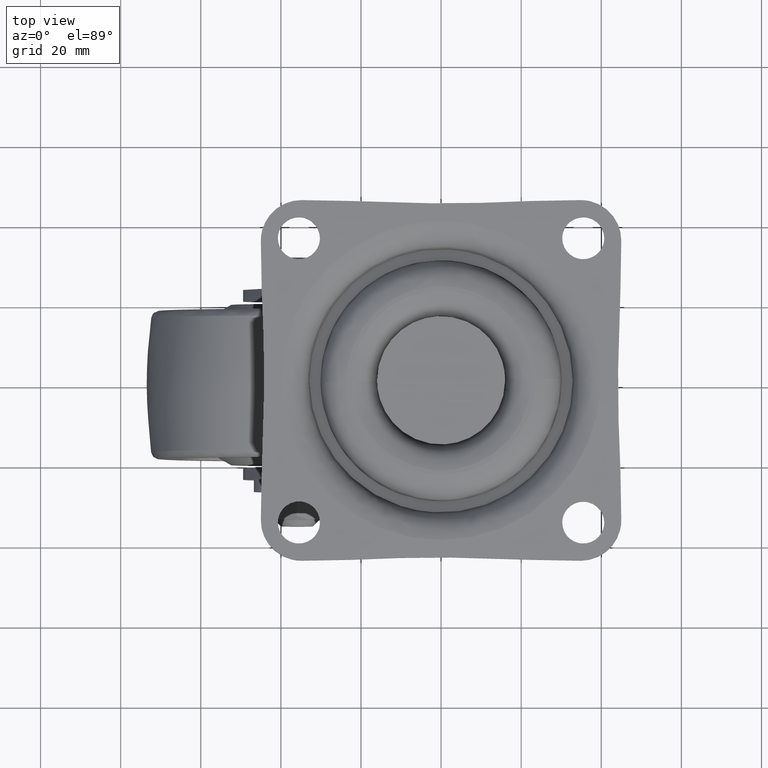
[diagram: clean part render]
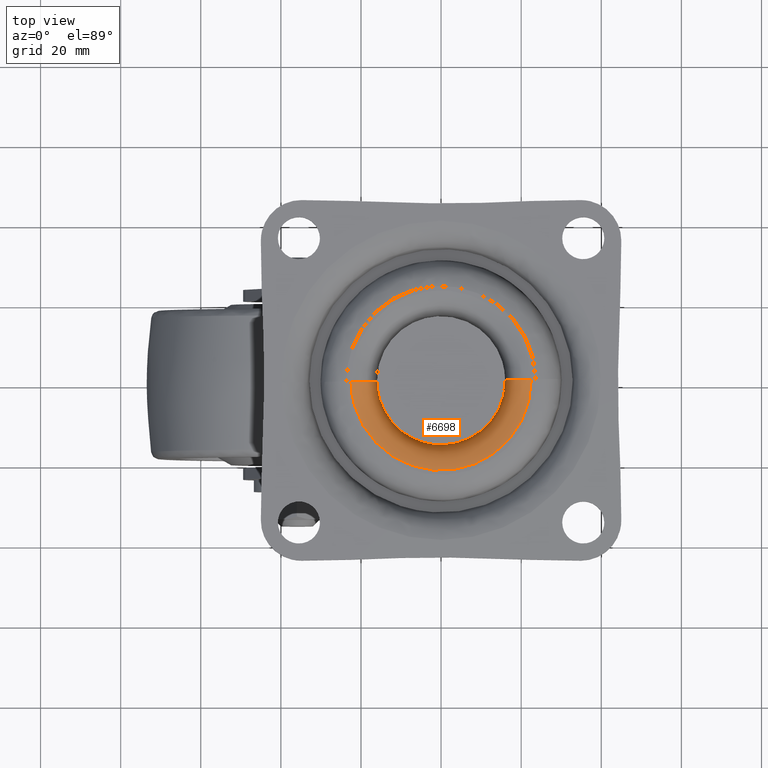
[diagram: same view with one face highlighted and labeled with its STEP entity id]
A machine part, top view. The second image highlights one B-rep face of the part: STEP entity #6698.
In plain terms, the highlighted face is a freeform B-spline surface patch.
Its self-contained STEP definition (entity closure, byte-faithful):
#6268=CARTESIAN_POINT('',(0.139614186200612,-15.999390859620370,-6.499999999849278));
#6269=VERTEX_POINT('',#6268);
#6270=CARTESIAN_POINT('',(16.0,0.0,-6.500000000000000));
#6271=VERTEX_POINT('',#6270);
#6272=CARTESIAN_POINT('',(0.139614186200612,-15.999390859620371,-6.499999999849278));
#6273=CARTESIAN_POINT('',(15.999999999999993,-15.860989661873337,-6.499999999998977));
#6274=CARTESIAN_POINT('',(16.0,0.0,-6.500000000000000));
#6282=(BOUNDED_CURVE()B_SPLINE_CURVE(2,(#6272,#6273,#6274),.UNSPECIFIED.,.F.,.U.)B_SPLINE_CURVE_WITH_KNOTS((3,3),(0.251539780038470,0.500000000000000),.UNSPECIFIED.)CURVE()GEOMETRIC_REPRESENTATION_ITEM()RATIONAL_B_SPLINE_CURVE((0.996414292614693,0.708910745713476,1.0))REPRESENTATION_ITEM(''));
#6283=EDGE_CURVE('',#6269,#6271,#6282,.T.);
#6285=CARTESIAN_POINT('',(15.998736707260280,0.201056638195739,-6.499999999698154));
#6286=VERTEX_POINT('',#6285);
#6287=CARTESIAN_POINT('',(16.0,0.0,-6.500000000000000));
#6288=CARTESIAN_POINT('',(15.999999999999996,0.100532287901289,-6.499999999849077));
#6289=CARTESIAN_POINT('',(15.998736707260274,0.201056638195739,-6.499999999698154));
#6297=(BOUNDED_CURVE()B_SPLINE_CURVE(2,(#6287,#6288,#6289),.UNSPECIFIED.,.F.,.U.)B_SPLINE_CURVE_WITH_KNOTS((3,3),(0.500000000000000,0.502215704078954),.UNSPECIFIED.)CURVE()GEOMETRIC_REPRESENTATION_ITEM()RATIONAL_B_SPLINE_CURVE((1.0,0.997404141201508,0.994854295642441))REPRESENTATION_ITEM(''));
#6298=EDGE_CURVE('',#6271,#6286,#6297,.T.);
#6350=CARTESIAN_POINT('',(-15.998736707260271,-0.201056638195735,-6.499999999698153));
#6351=VERTEX_POINT('',#6350);
#6352=CARTESIAN_POINT('',(-15.998736707260271,-0.201056638195735,-6.499999999698153));
#6353=CARTESIAN_POINT('',(-15.800190878455719,-15.999999999998325,-6.499999999699007));
#6354=CARTESIAN_POINT('',(-2.778031E-014,-15.999999999996639,-6.499999999847963));
#6355=CARTESIAN_POINT('',(0.069808421948055,-15.999999999996639,-6.499999999848621));
#6356=CARTESIAN_POINT('',(0.139614186200612,-15.999390859620371,-6.499999999849278));
#6364=(BOUNDED_CURVE()B_SPLINE_CURVE(2,(#6352,#6353,#6354,#6355,#6356),.UNSPECIFIED.,.F.,.U.)B_SPLINE_CURVE_WITH_KNOTS((3,2,3),(0.002215704078954,0.250000000000000,0.251539780038470),.UNSPECIFIED.)CURVE()GEOMETRIC_REPRESENTATION_ITEM()RATIONAL_B_SPLINE_CURVE((0.994854295642441,0.709702639985040,1.0,0.998196035473072,0.996414292614693))REPRESENTATION_ITEM(''));
#6365=EDGE_CURVE('',#6351,#6269,#6364,.T.);
#6591=CARTESIAN_POINT('',(16.008843174080763,0.648966679501335,-6.951991209236103));
#6592=CARTESIAN_POINT('',(16.011639998253834,0.426414198882745,-6.951991209236103));
#6593=CARTESIAN_POINT('',(16.215723943027417,-15.813215235493171,-6.951991209236102));
#6594=CARTESIAN_POINT('',(0.201254353767123,-16.014469589260294,-6.951991209236102));
#6595=CARTESIAN_POINT('',(-15.813215235493171,-16.215723943027417,-6.951991209236102));
#6596=CARTESIAN_POINT('',(-16.017299180265407,0.023905491240843,-6.951991209236103));
#6597=CARTESIAN_POINT('',(-16.020096004437161,0.246457971754262,-6.951991209236103));
#6598=CARTESIAN_POINT('',(15.489341233927036,0.627907103526357,0.503991631115400));
#6599=CARTESIAN_POINT('',(15.492047298538758,0.412576659141751,0.503991631115399));
#6600=CARTESIAN_POINT('',(15.689508528347167,-15.300061604991768,0.503991631115400));
#6601=CARTESIAN_POINT('',(0.194723461677701,-15.494785066669470,0.503991631115399));
#6602=CARTESIAN_POINT('',(-15.300061604991768,-15.689508528347167,0.503991631115400));
#6603=CARTESIAN_POINT('',(-15.497522834798874,0.023129735682187,0.503991631115399));
#6604=CARTESIAN_POINT('',(-15.500228899409317,0.238460179965035,0.503991631115400));
#6605=CARTESIAN_POINT('',(22.942116038931797,0.930027779310469,-0.015734137043538));
#6606=CARTESIAN_POINT('',(22.946124140205651,0.611090003508503,-0.015734137043538));
#6607=CARTESIAN_POINT('',(23.238594838541875,-22.661763560071854,-0.015734137043538));
#6608=CARTESIAN_POINT('',(0.288415639235012,-22.950179199306866,-0.015734137043538));
#6609=CARTESIAN_POINT('',(-22.661763560071854,-23.238594838541875,-0.015734137043538));
#6610=CARTESIAN_POINT('',(-22.954234258406149,0.034258724884196,-0.015734137043538));
#6611=CARTESIAN_POINT('',(-22.958242359678124,0.353196500535444,-0.015734137043538));
#6619=(BOUNDED_SURFACE()B_SPLINE_SURFACE(2,2,((#6591,#6598,#6605),(#6592,#6599,#6606),(#6593,#6600,#6607),(#6594,#6601,#6608),(#6595,#6602,#6609),(#6596,#6603,#6610),(#6597,#6604,#6611)),.UNSPECIFIED.,.F.,.F.,.U.)B_SPLINE_SURFACE_WITH_KNOTS((3,1,2,1,3),(3,3),(0.0,0.760562089707979,38.788666561957172,76.816771034206354,77.577333123548570),(0.0,11.847744956306920),.UNSPECIFIED.)GEOMETRIC_REPRESENTATION_ITEM()RATIONAL_B_SPLINE_SURFACE(((0.921146729408638,0.604479481454856,0.921146741241271),(0.915813262249817,0.600979527148347,0.915813274013940),(0.643806437242182,0.422481857576905,0.643806445512228),(0.910479795090997,0.597479572841838,0.910479806786608),(0.643806437242182,0.422481857576905,0.643806445512228),(0.915813262247252,0.600979527146663,0.915813274011374),(0.921146729403508,0.604479481451489,0.921146741236141)))REPRESENTATION_ITEM('')SURFACE());
#6620=ORIENTED_EDGE('',*,*,#6298,.F.);
#6621=ORIENTED_EDGE('',*,*,#6283,.F.);
#6622=ORIENTED_EDGE('',*,*,#6365,.F.);
#6623=CARTESIAN_POINT('',(-22.498223494148370,-0.282735897588697,-1.131159E-015));
#6624=VERTEX_POINT('',#6623);
#6625=CARTESIAN_POINT('',(-15.998736707260271,-0.201056638195735,-6.499999999698153));
#6626=CARTESIAN_POINT('',(-15.998736707561113,-0.201056638277845,-4.347808E-010));
#6627=CARTESIAN_POINT('',(-22.498223494148370,-0.282735897588697,-1.131159E-015));
#6635=(BOUNDED_CURVE()B_SPLINE_CURVE(2,(#6625,#6626,#6627),.UNSPECIFIED.,.F.,.U.)B_SPLINE_CURVE_WITH_KNOTS((3,3),(-1.725134643234193,-0.274865356786780),.UNSPECIFIED.)CURVE()GEOMETRIC_REPRESENTATION_ITEM()RATIONAL_B_SPLINE_CURVE((0.883342149636068,0.624617224148313,0.883342149628585))REPRESENTATION_ITEM(''));
#6636=EDGE_CURVE('',#6351,#6624,#6635,.T.);
#6637=ORIENTED_EDGE('',*,*,#6636,.T.);
#6638=CARTESIAN_POINT('',(22.500000000000000,0.0,0.0));
#6639=VERTEX_POINT('',#6638);
#6640=CARTESIAN_POINT('',(22.500000000000000,0.0,0.0));
#6641=CARTESIAN_POINT('',(22.500096160710122,-1.283372287879310,-2.002808E-019));
#6642=CARTESIAN_POINT('',(22.287684791509530,-3.758436177371261,-5.930555E-018));
#6643=CARTESIAN_POINT('',(21.421215022279629,-7.143796428350690,-2.824559E-017));
#6644=CARTESIAN_POINT('',(20.177105575176920,-10.109140565928190,-5.998696E-017));
#6645=CARTESIAN_POINT('',(18.709766390901329,-12.603768842307030,-9.726529E-017));
#6646=CARTESIAN_POINT('',(16.831097328499450,-15.039622286664301,-1.448739E-016));
#6647=CARTESIAN_POINT('',(14.337870287906989,-17.488195704567001,-2.079325E-016));
#6648=CARTESIAN_POINT('',(11.340274986676169,-19.548325151932939,-2.836081E-016));
#6649=CARTESIAN_POINT('',(8.140127132989449,-21.055524700444380,-3.642879E-016));
#6650=CARTESIAN_POINT('',(4.890726340036519,-22.059443731458948,-4.461262E-016));
#6651=CARTESIAN_POINT('',(1.702352543618377,-22.511120077376599,-5.263433E-016));
#6652=CARTESIAN_POINT('',(-1.373254337983227,-22.511567920909130,-6.036545E-016));
#6653=CARTESIAN_POINT('',(-4.063940337416568,-22.189882954340732,-6.712391E-016));
#6654=CARTESIAN_POINT('',(-7.049325516461278,-21.445776982178259,-7.461649E-016));
#6655=CARTESIAN_POINT('',(-9.734200179303983,-20.358300744745510,-8.134825E-016));
#6656=CARTESIAN_POINT('',(-12.568260812087329,-18.749754237999479,-8.844678E-016));
#6657=CARTESIAN_POINT('',(-15.051486926408851,-16.847315460602299,-9.465879E-016));
#6658=CARTESIAN_POINT('',(-17.333523299932551,-14.452030921508710,-1.003573E-015));
#6659=CARTESIAN_POINT('',(-18.895956304598869,-12.294403005990450,-1.042507E-015));
#6660=CARTESIAN_POINT('',(-20.194874891920069,-10.024800123679929,-1.074799E-015));
#6661=CARTESIAN_POINT('',(-21.311442715897439,-7.454582888491670,-1.102460E-015));
#6662=CARTESIAN_POINT('',(-22.230456620396470,-4.083962480604988,-1.125029E-015));
#6663=CARTESIAN_POINT('',(-22.481645092463658,-1.611865036835162,-1.130953E-015));
#6664=CARTESIAN_POINT('',(-22.498223494148370,-0.282735897588697,-1.131159E-015));
#6665=B_SPLINE_CURVE_WITH_KNOTS('',3,(#6640,#6641,#6642,#6643,#6644,#6645,#6646,#6647,#6648,#6649,#6650,#6651,#6652,#6653,#6654,#6655,#6656,#6657,#6658,#6659,#6660,#6661,#6662,#6663,#6664),.UNSPECIFIED.,.F.,.U.,(4,1,1,1,1,1,1,1,1,1,1,1,1,1,1,1,1,1,1,1,1,1,4),(0.000000153128553,3.850106185794928,7.425294229211282,10.450446511623939,13.475602920638551,16.088233616342940,19.663407567487202,23.926122394705452,26.951253430561369,30.251380433132510,34.101563157762953,36.576644654482699,39.464235074621847,42.214408863435381,45.789580569500806,48.127162860160752,51.977358731565992,55.140012408270103,58.027650355821073,59.952757709406079,62.977868821077678,66.415525219332537,70.403200926660958),.UNSPECIFIED.);
#6666=EDGE_CURVE('',#6639,#6624,#6665,.T.);
#6667=ORIENTED_EDGE('',*,*,#6666,.F.);
#6668=CARTESIAN_POINT('',(22.498223494148359,0.282735897588695,-1.131159E-015));
#6669=VERTEX_POINT('',#6668);
#6670=CARTESIAN_POINT('',(22.498223494148355,0.282735897588695,-1.131159E-015));
#6671=CARTESIAN_POINT('',(22.499999999782627,0.141373529924164,-5.655797E-016));
#6672=CARTESIAN_POINT('',(22.500000000000000,0.0,0.0));
#6680=(BOUNDED_CURVE()B_SPLINE_CURVE(2,(#6670,#6671,#6672),.UNSPECIFIED.,.F.,.U.)B_SPLINE_CURVE_WITH_KNOTS((3,3),(0.497784295920018,0.500000000000000),.UNSPECIFIED.)CURVE()GEOMETRIC_REPRESENTATION_ITEM()RATIONAL_B_SPLINE_CURVE((0.994854295640077,0.997404141200304,1.0))REPRESENTATION_ITEM(''));
#6681=EDGE_CURVE('',#6669,#6639,#6680,.T.);
#6682=ORIENTED_EDGE('',*,*,#6681,.F.);
#6683=CARTESIAN_POINT('',(15.998736707260282,0.201056638195739,-6.499999999698154));
#6684=CARTESIAN_POINT('',(15.998736707561113,0.201056638277846,-4.347901E-010));
#6685=CARTESIAN_POINT('',(22.498223494148359,0.282735897588695,-1.131159E-015));
#6693=(BOUNDED_CURVE()B_SPLINE_CURVE(2,(#6683,#6684,#6685),.UNSPECIFIED.,.F.,.U.)B_SPLINE_CURVE_WITH_KNOTS((3,3),(-1.725134643234193,-0.274865356786782),.UNSPECIFIED.)CURVE()GEOMETRIC_REPRESENTATION_ITEM()RATIONAL_B_SPLINE_CURVE((0.883342149636068,0.624617224148313,0.883342149628585))REPRESENTATION_ITEM(''));
#6694=EDGE_CURVE('',#6286,#6669,#6693,.T.);
#6695=ORIENTED_EDGE('',*,*,#6694,.F.);
#6696=EDGE_LOOP('',(#6620,#6621,#6622,#6637,#6667,#6682,#6695));
#6697=FACE_OUTER_BOUND('',#6696,.T.);
#6698=ADVANCED_FACE('',(#6697),#6619,.T.);